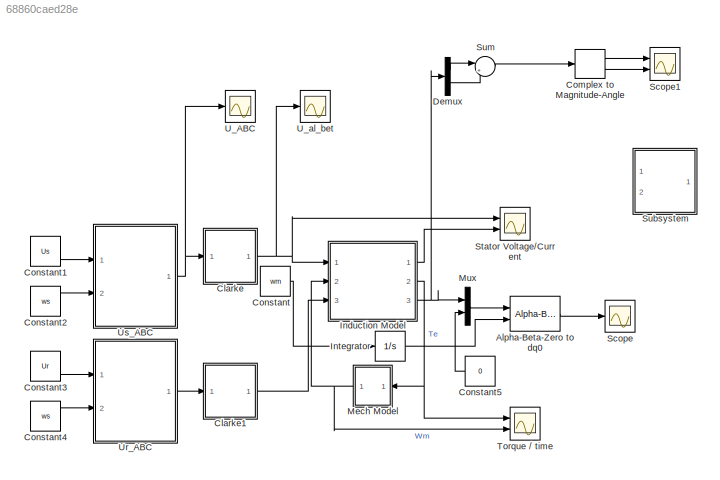
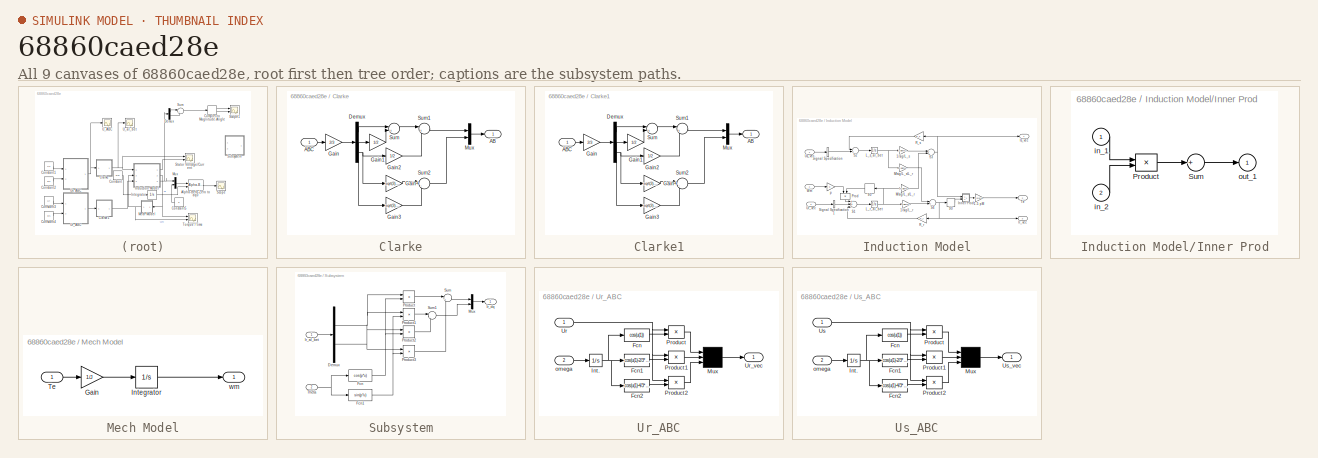
[diagram: thumbnail index - all 9 canvases of the model, root first then tree order]
MODEL slx_68860caed28e
KIND model
CONFIG AbsTol = auto
CONFIG EnableMultiTasking = off
CONFIG FixedStep = auto
CONFIG MaxStep = auto
CONFIG MinStep = auto
CONFIG RelTol = 1e-3
CONFIG SampleTimeConstraint = Unconstrained
CONFIG Solver = VariableStepAuto
CONFIG SolverName = VariableStepAuto
CONFIG StartTime = 0.0
CONFIG StopTime = 1000
BLOCK [Reference] Alpha-Beta-Zero to dq0  REF=powerlib_meascontrol/Transformations/Alpha-Beta-Zero
to dq0
  Ports = [2, 1]
  SourceBlock = powerlib_meascontrol/Transformations/Alpha-Beta-Zero\nto dq0
  SourceType = Alpha-Beta-Zero to dq0 Transformation
BLOCK [SubSystem] Clarke
  Ports = [1, 1]
  RequestExecContextInheritance = off
  Variant = off
BLOCK [Outport] Clarke/AB
  IconDisplay = Port number
BLOCK [Inport] Clarke/ABC
  IconDisplay = Port number
BLOCK [Demux] Clarke/Demux
  DisplayOption = bar
  Outputs = 3
  Ports = [1, 3]
BLOCK [Gain] Clarke/Gain
  Gain = 2/3
  OutDataTypeStr = Inherit: Inherit via internal rule
  ParamDataTypeStr = Inherit: Inherit via internal rule
  SaturateOnIntegerOverflow = off
BLOCK [Gain] Clarke/Gain1
  Gain = 1/2
  OutDataTypeStr = Inherit: Inherit via internal rule
  ParamDataTypeStr = Inherit: Inherit via internal rule
  SaturateOnIntegerOverflow = off
BLOCK [Gain] Clarke/Gain2
  Gain = 1/2
  OutDataTypeStr = Inherit: Inherit via internal rule
  ParamDataTypeStr = Inherit: Inherit via internal rule
  SaturateOnIntegerOverflow = off
BLOCK [Gain] Clarke/Gain3
  Gain = sqrt(3)/2
  OutDataTypeStr = Inherit: Inherit via internal rule
  ParamDataTypeStr = Inherit: Inherit via internal rule
  SaturateOnIntegerOverflow = off
BLOCK [Gain] Clarke/Gain4
  Gain = sqrt(3)/2
  OutDataTypeStr = Inherit: Inherit via internal rule
  ParamDataTypeStr = Inherit: Inherit via internal rule
  SaturateOnIntegerOverflow = off
BLOCK [Mux] Clarke/Mux
  DisplayOption = bar
  Inputs = 2
  Ports = [2, 1]
BLOCK [Sum] Clarke/Sum
  IconShape = round
  InputSameDT = off
  Inputs = |+-
  OutDataTypeStr = Inherit: Inherit via internal rule
  Ports = [2, 1]
  SaturateOnIntegerOverflow = off
BLOCK [Sum] Clarke/Sum1
  IconShape = round
  InputSameDT = off
  Inputs = |+-
  OutDataTypeStr = Inherit: Inherit via internal rule
  Ports = [2, 1]
  SaturateOnIntegerOverflow = off
BLOCK [Sum] Clarke/Sum2
  IconShape = round
  InputSameDT = off
  Inputs = |-+
  OutDataTypeStr = Inherit: Inherit via internal rule
  Ports = [2, 1]
  SaturateOnIntegerOverflow = off
BLOCK [SubSystem] Clarke1
  Ports = [1, 1]
  RequestExecContextInheritance = off
  Variant = off
BLOCK [Outport] Clarke1/AB
  IconDisplay = Port number
BLOCK [Inport] Clarke1/ABC
  IconDisplay = Port number
BLOCK [Demux] Clarke1/Demux
  DisplayOption = bar
  Outputs = 3
  Ports = [1, 3]
BLOCK [Gain] Clarke1/Gain
  Gain = 2/3
  OutDataTypeStr = Inherit: Inherit via internal rule
  ParamDataTypeStr = Inherit: Inherit via internal rule
  SaturateOnIntegerOverflow = off
BLOCK [Gain] Clarke1/Gain1
  Gain = 1/2
  OutDataTypeStr = Inherit: Inherit via internal rule
  ParamDataTypeStr = Inherit: Inherit via internal rule
  SaturateOnIntegerOverflow = off
BLOCK [Gain] Clarke1/Gain2
  Gain = 1/2
  OutDataTypeStr = Inherit: Inherit via internal rule
  ParamDataTypeStr = Inherit: Inherit via internal rule
  SaturateOnIntegerOverflow = off
BLOCK [Gain] Clarke1/Gain3
  Gain = sqrt(3)/2
  OutDataTypeStr = Inherit: Inherit via internal rule
  ParamDataTypeStr = Inherit: Inherit via internal rule
  SaturateOnIntegerOverflow = off
BLOCK [Gain] Clarke1/Gain4
  Gain = sqrt(3)/2
  OutDataTypeStr = Inherit: Inherit via internal rule
  ParamDataTypeStr = Inherit: Inherit via internal rule
  SaturateOnIntegerOverflow = off
BLOCK [Mux] Clarke1/Mux
  DisplayOption = bar
  Inputs = 2
  Ports = [2, 1]
BLOCK [Sum] Clarke1/Sum
  IconShape = round
  InputSameDT = off
  Inputs = |+-
  OutDataTypeStr = Inherit: Inherit via internal rule
  Ports = [2, 1]
  SaturateOnIntegerOverflow = off
BLOCK [Sum] Clarke1/Sum1
  IconShape = round
  InputSameDT = off
  Inputs = |+-
  OutDataTypeStr = Inherit: Inherit via internal rule
  Ports = [2, 1]
  SaturateOnIntegerOverflow = off
BLOCK [Sum] Clarke1/Sum2
  IconShape = round
  InputSameDT = off
  Inputs = |-+
  OutDataTypeStr = Inherit: Inherit via internal rule
  Ports = [2, 1]
  SaturateOnIntegerOverflow = off
BLOCK [ComplexToMagnitudeAngle] Complex to Magnitude-Angle
  Ports = [1, 2]
BLOCK [Constant] Constant
  Value = wm
BLOCK [Constant] Constant1
  Value = Us
BLOCK [Constant] Constant2
  Value = ws
BLOCK [Constant] Constant3
  Value = Ur
BLOCK [Constant] Constant4
  Value = ws
BLOCK [Constant] Constant5
  Value = 0
BLOCK [Demux] Demux
  DisplayOption = bar
  Outputs = 2
  Ports = [1, 2]
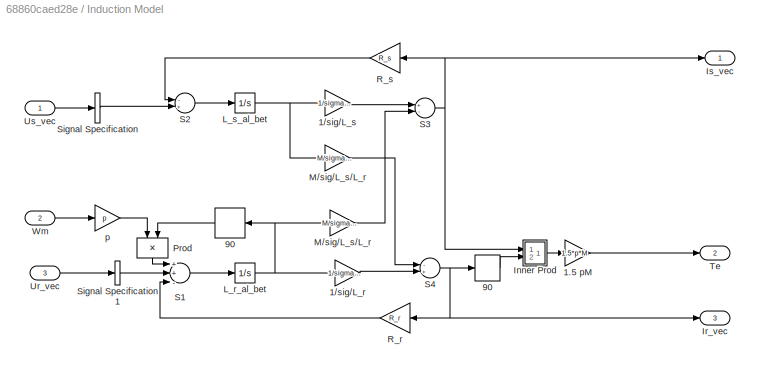
BLOCK [SubSystem] Induction Model
  Ports = [3, 3]
  RequestExecContextInheritance = off
  Variant = off
BLOCK [Gain] Induction Model/1.5 pM
  Gain = 1.5*p*M
BLOCK [Gain] Induction Model/1//sig//L_r
  Gain = 1/sigma/L_r
BLOCK [Gain] Induction Model/1//sig//L_s 
  Gain = 1/sigma/L_s
BLOCK [StateSpace] Induction Model/90
  A = []
  B = []
  C = []
  D = K
  Ports = [1, 1]
  X0 = 0
BLOCK [StateSpace] Induction Model/90 
  A = []
  B = []
  C = []
  D = K
  Ports = [1, 1]
  X0 = 0
BLOCK [SubSystem] Induction Model/Inner Prod
  Ports = [2, 1]
  RequestExecContextInheritance = off
  ShowPortLabels = none
  Variant = off
BLOCK [Product] Induction Model/Inner Prod/Product
  Ports = [2, 1]
BLOCK [Sum] Induction Model/Inner Prod/Sum
  Inputs = +
  Ports = [1, 1]
BLOCK [Inport] Induction Model/Inner Prod/in_1
  IconDisplay = Port number
BLOCK [Inport] Induction Model/Inner Prod/in_2
  IconDisplay = Port number
  Port = 2
BLOCK [Outport] Induction Model/Inner Prod/out_1
  IconDisplay = Port number
BLOCK [Outport] Induction Model/Ir_vec
  IconDisplay = Port number
  Port = 3
BLOCK [Outport] Induction Model/Is_vec
  IconDisplay = Port number
BLOCK [Integrator] Induction Model/L_r_al_bet
  InitialCondition = L_r_al_bet0
  Ports = [1, 1]
BLOCK [Integrator] Induction Model/L_s_al_bet
  InitialCondition = L_s_al_bet0
  Ports = [1, 1]
BLOCK [Gain] Induction Model/M//sig//L_s//L_r
  Gain = M/sigma/L_s/L_r
BLOCK [Gain] Induction Model/M//sig//L_s//L_r 
  Gain = M/sigma/L_s/L_r
BLOCK [Product] Induction Model/Prod
  Ports = [2, 1]
BLOCK [Gain] Induction Model/R_r
  Gain = R_r
BLOCK [Gain] Induction Model/R_s
  Gain = R_s
BLOCK [Sum] Induction Model/S1
  Inputs = ++-
  Ports = [3, 1]
BLOCK [Sum] Induction Model/S2
  Inputs = -+
  Ports = [2, 1]
BLOCK [Sum] Induction Model/S3
  Inputs = +-
  Ports = [2, 1]
BLOCK [Sum] Induction Model/S4
  Inputs = -+
  Ports = [2, 1]
BLOCK [SignalSpecification] Induction Model/Signal Specification
  Dimensions = [2 1]
BLOCK [SignalSpecification] Induction Model/Signal Specification1
  Dimensions = [2 1]
BLOCK [Outport] Induction Model/Te
  IconDisplay = Port number
  Port = 2
BLOCK [Inport] Induction Model/Ur_vec
  IconDisplay = Port number
  Port = 3
BLOCK [Inport] Induction Model/Us_vec
  IconDisplay = Port number
BLOCK [Inport] Induction Model/Wm
  IconDisplay = Port number
  Port = 2
BLOCK [Gain] Induction Model/p
  Gain = p
BLOCK [Integrator] Integrator
  Ports = [1, 1]
BLOCK [SubSystem] Mech Model
  Ports = [1, 1]
  RequestExecContextInheritance = off
  Variant = off
BLOCK [Gain] Mech Model/Gain
  Gain = 1/J
  OutDataTypeStr = Inherit: Inherit via internal rule
  ParamDataTypeStr = Inherit: Inherit via internal rule
  SaturateOnIntegerOverflow = off
BLOCK [Integrator] Mech Model/Integrator
  Ports = [1, 1]
BLOCK [Inport] Mech Model/Te
  IconDisplay = Port number
BLOCK [Outport] Mech Model/wm
  IconDisplay = Port number
BLOCK [Mux] Mux
  DisplayOption = bar
  Inputs = 2
  Ports = [2, 1]
BLOCK [Scope] Scope
  NumInputPorts = 1
  Ports = [1]
  ScopeSpecificationString = Simulink.scopes.TimeScopeBlockCfg('CurrentConfiguration', extmgr.ConfigurationSet(extmgr.Configuration('Core','General UI',true),extmgr.Configuration('Core','Source UI',true),extmgr.Configuration('Sources','WiredSimulink',true,'DataLoggingVariableName','ScopeData1'),extmgr.Configuration('Visuals','Time Domain',true,'SerializedDisplays',{struct('MinYLimReal','-193.06657','MaxYLimReal','193.06748','...<+1882ch>
BLOCK [Scope] Scope1
  NumInputPorts = 2
  Ports = [2]
  ScopeSpecificationString = Simulink.scopes.TimeScopeBlockCfg('CurrentConfiguration', extmgr.ConfigurationSet(extmgr.Configuration('Core','General UI',true),extmgr.Configuration('Core','Source UI',true),extmgr.Configuration('Sources','WiredSimulink',true,'DataLoggingVariableName','ScopeData1'),extmgr.Configuration('Visuals','Time Domain',true),extmgr.Configuration('Tools','Plot Navigation',true),extmgr.Configuration('Tools',...<+84ch>
BLOCK [Scope] Stator Voltage//Current 
  NumInputPorts = 2
  Ports = [2]
  ScopeSpecificationString = Simulink.scopes.TimeScopeBlockCfg('CurrentConfiguration', extmgr.ConfigurationSet(extmgr.Configuration('Core','General UI',true),extmgr.Configuration('Core','Source UI',true),extmgr.Configuration('Sources','WiredSimulink',true,'DataLoggingVariableName','ScopeData1','DataLoggingLimitDataPoints',true,'DataLoggingSaveFormat','Array','DataLoggingDecimation','1','DataLoggingDecimateData',true),extmgr.C...<+1586ch>
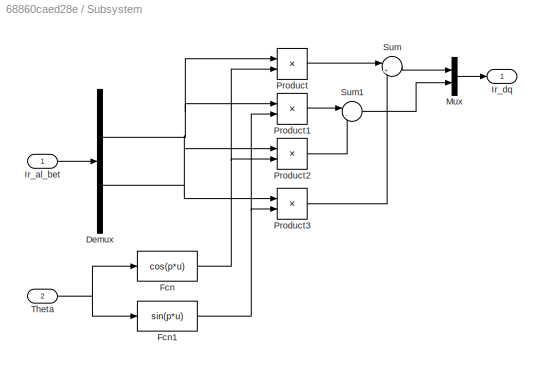
BLOCK [SubSystem] Subsystem
  Ports = [2, 1]
  RequestExecContextInheritance = off
  Variant = off
BLOCK [Demux] Subsystem/Demux
  DisplayOption = bar
  Outputs = 2
  Ports = [1, 2]
BLOCK [Fcn] Subsystem/Fcn
  Expr = cos(p*u)
BLOCK [Fcn] Subsystem/Fcn1
  Expr = sin(p*u)
BLOCK [Inport] Subsystem/Ir_al_bet
  IconDisplay = Port number
BLOCK [Outport] Subsystem/Ir_dq
  IconDisplay = Port number
BLOCK [Mux] Subsystem/Mux
  DisplayOption = bar
  Inputs = 2
  Ports = [2, 1]
BLOCK [Product] Subsystem/Product
  InputSameDT = off
  OutDataTypeStr = Inherit: Inherit via internal rule
  Ports = [2, 1]
  RndMeth = Floor
  SaturateOnIntegerOverflow = off
BLOCK [Product] Subsystem/Product1
  InputSameDT = off
  OutDataTypeStr = Inherit: Inherit via internal rule
  Ports = [2, 1]
  RndMeth = Floor
  SaturateOnIntegerOverflow = off
BLOCK [Product] Subsystem/Product2
  InputSameDT = off
  OutDataTypeStr = Inherit: Inherit via internal rule
  Ports = [2, 1]
  RndMeth = Floor
  SaturateOnIntegerOverflow = off
BLOCK [Product] Subsystem/Product3
  InputSameDT = off
  OutDataTypeStr = Inherit: Inherit via internal rule
  Ports = [2, 1]
  RndMeth = Floor
  SaturateOnIntegerOverflow = off
BLOCK [Sum] Subsystem/Sum
  IconShape = round
  InputSameDT = off
  Inputs = |++
  OutDataTypeStr = Inherit: Inherit via internal rule
  Ports = [2, 1]
  SaturateOnIntegerOverflow = off
BLOCK [Sum] Subsystem/Sum1
  IconShape = round
  InputSameDT = off
  Inputs = |-+
  OutDataTypeStr = Inherit: Inherit via internal rule
  Ports = [2, 1]
  SaturateOnIntegerOverflow = off
BLOCK [Inport] Subsystem/Theta
  IconDisplay = Port number
  Port = 2
BLOCK [Sum] Sum
  IconShape = round
  InputSameDT = off
  Inputs = |++
  OutDataTypeStr = Inherit: Inherit via internal rule
  Ports = [2, 1]
  SaturateOnIntegerOverflow = off
BLOCK [Scope] Torque // time
  NumInputPorts = 2
  Ports = [2]
  ScopeSpecificationString = Simulink.scopes.TimeScopeBlockCfg('CurrentConfiguration', extmgr.ConfigurationSet(extmgr.Configuration('Core','General UI',true),extmgr.Configuration('Core','Source UI',true),extmgr.Configuration('Sources','WiredSimulink',true,'DataLoggingVariableName','ScopeData2'),extmgr.Configuration('Visuals','Time Domain',true,'SerializedDisplays',{struct('MinYLimReal','-1.41963','MaxYLimReal','12.7141','YLab...<+2125ch>
BLOCK [Scope] U_ABC 
  NumInputPorts = 1
  Ports = [1]
  ScopeSpecificationString = Simulink.scopes.TimeScopeBlockCfg('CurrentConfiguration', extmgr.ConfigurationSet(extmgr.Configuration('Core','General UI',true),extmgr.Configuration('Core','Source UI',true),extmgr.Configuration('Sources','WiredSimulink',true,'DataLoggingVariableName','ScopeData3'),extmgr.Configuration('Visuals','Time Domain',true,'SerializedDisplays',{struct('MinYLimReal','-388.90861','MaxYLimReal','388.90872','...<+1455ch>
BLOCK [Scope] U_al_bet
  NumInputPorts = 1
  Ports = [1]
  ScopeSpecificationString = Simulink.scopes.TimeScopeBlockCfg('CurrentConfiguration', extmgr.ConfigurationSet(extmgr.Configuration('Core','General UI',true),extmgr.Configuration('Core','Source UI',true),extmgr.Configuration('Sources','WiredSimulink',true,'DataLoggingVariableName','ScopeData4'),extmgr.Configuration('Visuals','Time Domain',true,'SerializedDisplays',{struct('MinYLimReal','-388.90866','MaxYLimReal','388.90872','...<+1436ch>
BLOCK [SubSystem] Ur_ABC
  Ports = [2, 1]
  RequestExecContextInheritance = off
  Variant = off
BLOCK [Fcn] Ur_ABC/Fcn
  Expr = cos(u(1))
BLOCK [Fcn] Ur_ABC/Fcn1
  Expr = cos(u(1)-2/3*pi)
BLOCK [Fcn] Ur_ABC/Fcn2
  Expr = cos(u(1)-4/3*pi)
BLOCK [Integrator] Ur_ABC/Int.
  Ports = [1, 1]
BLOCK [Mux] Ur_ABC/Mux
  Inputs = 3
  Ports = [3, 1]
BLOCK [Product] Ur_ABC/Product
  Ports = [2, 1]
BLOCK [Product] Ur_ABC/Product1
  Ports = [2, 1]
BLOCK [Product] Ur_ABC/Product2
  Ports = [2, 1]
BLOCK [Inport] Ur_ABC/Ur
  IconDisplay = Port number
BLOCK [Outport] Ur_ABC/Ur_vec
  IconDisplay = Port number
BLOCK [Inport] Ur_ABC/omega
  IconDisplay = Port number
  Port = 2
BLOCK [SubSystem] Us_ABC
  Ports = [2, 1]
  RequestExecContextInheritance = off
  Variant = off
BLOCK [Fcn] Us_ABC/Fcn
  Expr = cos(u(1))
BLOCK [Fcn] Us_ABC/Fcn1
  Expr = cos(u(1)-2/3*pi)
BLOCK [Fcn] Us_ABC/Fcn2
  Expr = cos(u(1)-4/3*pi)
BLOCK [Integrator] Us_ABC/Int.
  Ports = [1, 1]
BLOCK [Mux] Us_ABC/Mux
  Inputs = 3
  Ports = [3, 1]
BLOCK [Product] Us_ABC/Product
  Ports = [2, 1]
BLOCK [Product] Us_ABC/Product1
  Ports = [2, 1]
BLOCK [Product] Us_ABC/Product2
  Ports = [2, 1]
BLOCK [Inport] Us_ABC/Us
  IconDisplay = Port number
BLOCK [Outport] Us_ABC/Us_vec
  IconDisplay = Port number
BLOCK [Inport] Us_ABC/omega
  IconDisplay = Port number
  Port = 2
LINE Alpha-Beta-Zero to dq0:1 -> Scope:1
LINE Clarke/ABC:1 -> Clarke/Gain:1
LINE Clarke/Demux:1 -> Clarke/Sum:1
NET Clarke/Demux:2 -> Clarke/Gain1:1, Clarke/Gain3:1
NET Clarke/Demux:3 -> Clarke/Gain2:1, Clarke/Gain4:1
LINE Clarke/Gain1:1 -> Clarke/Sum:2
LINE Clarke/Gain2:1 -> Clarke/Sum1:2
LINE Clarke/Gain3:1 -> Clarke/Sum2:2
LINE Clarke/Gain4:1 -> Clarke/Sum2:1
LINE Clarke/Gain:1 -> Clarke/Demux:1
LINE Clarke/Mux:1 -> Clarke/AB:1
LINE Clarke/Sum1:1 -> Clarke/Mux:1
LINE Clarke/Sum2:1 -> Clarke/Mux:2
LINE Clarke/Sum:1 -> Clarke/Sum1:1
LINE Clarke1/ABC:1 -> Clarke1/Gain:1
LINE Clarke1/Demux:1 -> Clarke1/Sum:1
NET Clarke1/Demux:2 -> Clarke1/Gain1:1, Clarke1/Gain3:1
NET Clarke1/Demux:3 -> Clarke1/Gain2:1, Clarke1/Gain4:1
LINE Clarke1/Gain1:1 -> Clarke1/Sum:2
LINE Clarke1/Gain2:1 -> Clarke1/Sum1:2
LINE Clarke1/Gain3:1 -> Clarke1/Sum2:2
LINE Clarke1/Gain4:1 -> Clarke1/Sum2:1
LINE Clarke1/Gain:1 -> Clarke1/Demux:1
LINE Clarke1/Mux:1 -> Clarke1/AB:1
LINE Clarke1/Sum1:1 -> Clarke1/Mux:1
LINE Clarke1/Sum2:1 -> Clarke1/Mux:2
LINE Clarke1/Sum:1 -> Clarke1/Sum1:1
LINE Clarke1:1 -> Induction Model:3
NET Clarke:1 -> Induction Model:1, Stator Voltage//Current :1, U_al_bet:1
LINE Complex to Magnitude-Angle:1 -> Scope1:1
LINE Complex to Magnitude-Angle:2 -> Scope1:2
LINE Constant1:1 -> Us_ABC:1
LINE Constant2:1 -> Us_ABC:2
LINE Constant3:1 -> Ur_ABC:1
LINE Constant4:1 -> Ur_ABC:2
LINE Constant5:1 -> Mux:2
LINE Constant:1 -> Integrator:1
LINE Demux:1 -> Sum:1
LINE Demux:2 -> Sum:2
LINE Induction Model/1.5 pM:1 -> Induction Model/Te:1
LINE Induction Model/1//sig//L_r:1 -> Induction Model/S4:2
LINE Induction Model/1//sig//L_s :1 -> Induction Model/S3:1
LINE Induction Model/90 :1 -> Induction Model/Inner Prod:2
LINE Induction Model/90:1 -> Induction Model/Prod:2
LINE Induction Model/Inner Prod/Product:1 -> Induction Model/Inner Prod/Sum:1
LINE Induction Model/Inner Prod/Sum:1 -> Induction Model/Inner Prod/out_1:1
LINE Induction Model/Inner Prod/in_1:1 -> Induction Model/Inner Prod/Product:1
LINE Induction Model/Inner Prod/in_2:1 -> Induction Model/Inner Prod/Product:2
LINE Induction Model/Inner Prod:1 -> Induction Model/1.5 pM:1
NET Induction Model/L_r_al_bet:1 -> Induction Model/1//sig//L_r:1, Induction Model/90:1, Induction Model/M//sig//L_s//L_r :1
NET Induction Model/L_s_al_bet:1 -> Induction Model/1//sig//L_s :1, Induction Model/M//sig//L_s//L_r:1
LINE Induction Model/M//sig//L_s//L_r :1 -> Induction Model/S3:2
LINE Induction Model/M//sig//L_s//L_r:1 -> Induction Model/S4:1
LINE Induction Model/Prod:1 -> Induction Model/S1:1
LINE Induction Model/R_r:1 -> Induction Model/S1:3
LINE Induction Model/R_s:1 -> Induction Model/S2:1
LINE Induction Model/S1:1 -> Induction Model/L_r_al_bet:1
LINE Induction Model/S2:1 -> Induction Model/L_s_al_bet:1
NET Induction Model/S3:1 -> Induction Model/Inner Prod:1, Induction Model/Is_vec:1, Induction Model/R_s:1
NET Induction Model/S4:1 -> Induction Model/90 :1, Induction Model/Ir_vec:1, Induction Model/R_r:1
LINE Induction Model/Signal Specification1:1 -> Induction Model/S1:2
LINE Induction Model/Signal Specification:1 -> Induction Model/S2:2
LINE Induction Model/Ur_vec:1 -> Induction Model/Signal Specification1:1
LINE Induction Model/Us_vec:1 -> Induction Model/Signal Specification:1
LINE Induction Model/Wm:1 -> Induction Model/p:1
LINE Induction Model/p:1 -> Induction Model/Prod:1
LINE Induction Model:1 -> Stator Voltage//Current :2
NET Induction Model:2 -> Mech Model:1, Torque // time:1
NET Induction Model:3 -> Demux:1, Mux:1
LINE Integrator:1 -> Alpha-Beta-Zero to dq0:2
LINE Mech Model/Gain:1 -> Mech Model/Integrator:1
LINE Mech Model/Integrator:1 -> Mech Model/wm:1
LINE Mech Model/Te:1 -> Mech Model/Gain:1
NET Mech Model:1 -> Induction Model:2, Torque // time:2
LINE Mux:1 -> Alpha-Beta-Zero to dq0:1
NET Subsystem/Demux:1 -> Subsystem/Product1:1, Subsystem/Product:1
NET Subsystem/Demux:2 -> Subsystem/Product2:1, Subsystem/Product3:1
NET Subsystem/Fcn1:1 -> Subsystem/Product1:2, Subsystem/Product3:2
NET Subsystem/Fcn:1 -> Subsystem/Product2:2, Subsystem/Product:2
LINE Subsystem/Ir_al_bet:1 -> Subsystem/Demux:1
LINE Subsystem/Mux:1 -> Subsystem/Ir_dq:1
LINE Subsystem/Product1:1 -> Subsystem/Sum1:1
LINE Subsystem/Product2:1 -> Subsystem/Sum1:2
LINE Subsystem/Product3:1 -> Subsystem/Sum:2
LINE Subsystem/Product:1 -> Subsystem/Sum:1
LINE Subsystem/Sum1:1 -> Subsystem/Mux:2
LINE Subsystem/Sum:1 -> Subsystem/Mux:1
NET Subsystem/Theta:1 -> Subsystem/Fcn1:1, Subsystem/Fcn:1
LINE Sum:1 -> Complex to Magnitude-Angle:1
LINE Ur_ABC/Fcn1:1 -> Ur_ABC/Product1:2
LINE Ur_ABC/Fcn2:1 -> Ur_ABC/Product2:2
LINE Ur_ABC/Fcn:1 -> Ur_ABC/Product:2
NET Ur_ABC/Int.:1 -> Ur_ABC/Fcn1:1, Ur_ABC/Fcn2:1, Ur_ABC/Fcn:1
LINE Ur_ABC/Mux:1 -> Ur_ABC/Ur_vec:1
LINE Ur_ABC/Product1:1 -> Ur_ABC/Mux:2
LINE Ur_ABC/Product2:1 -> Ur_ABC/Mux:3
LINE Ur_ABC/Product:1 -> Ur_ABC/Mux:1
NET Ur_ABC/Ur:1 -> Ur_ABC/Product1:1, Ur_ABC/Product2:1, Ur_ABC/Product:1
LINE Ur_ABC/omega:1 -> Ur_ABC/Int.:1
LINE Ur_ABC:1 -> Clarke1:1
LINE Us_ABC/Fcn1:1 -> Us_ABC/Product1:2
LINE Us_ABC/Fcn2:1 -> Us_ABC/Product2:2
LINE Us_ABC/Fcn:1 -> Us_ABC/Product:2
NET Us_ABC/Int.:1 -> Us_ABC/Fcn1:1, Us_ABC/Fcn2:1, Us_ABC/Fcn:1
LINE Us_ABC/Mux:1 -> Us_ABC/Us_vec:1
LINE Us_ABC/Product1:1 -> Us_ABC/Mux:2
LINE Us_ABC/Product2:1 -> Us_ABC/Mux:3
LINE Us_ABC/Product:1 -> Us_ABC/Mux:1
NET Us_ABC/Us:1 -> Us_ABC/Product1:1, Us_ABC/Product2:1, Us_ABC/Product:1
LINE Us_ABC/omega:1 -> Us_ABC/Int.:1
NET Us_ABC:1 -> Clarke:1, U_ABC :1
note: NET lines group one-source signal fan-out (src -> all destinations, sorted); 1:1 wires keep LINE
